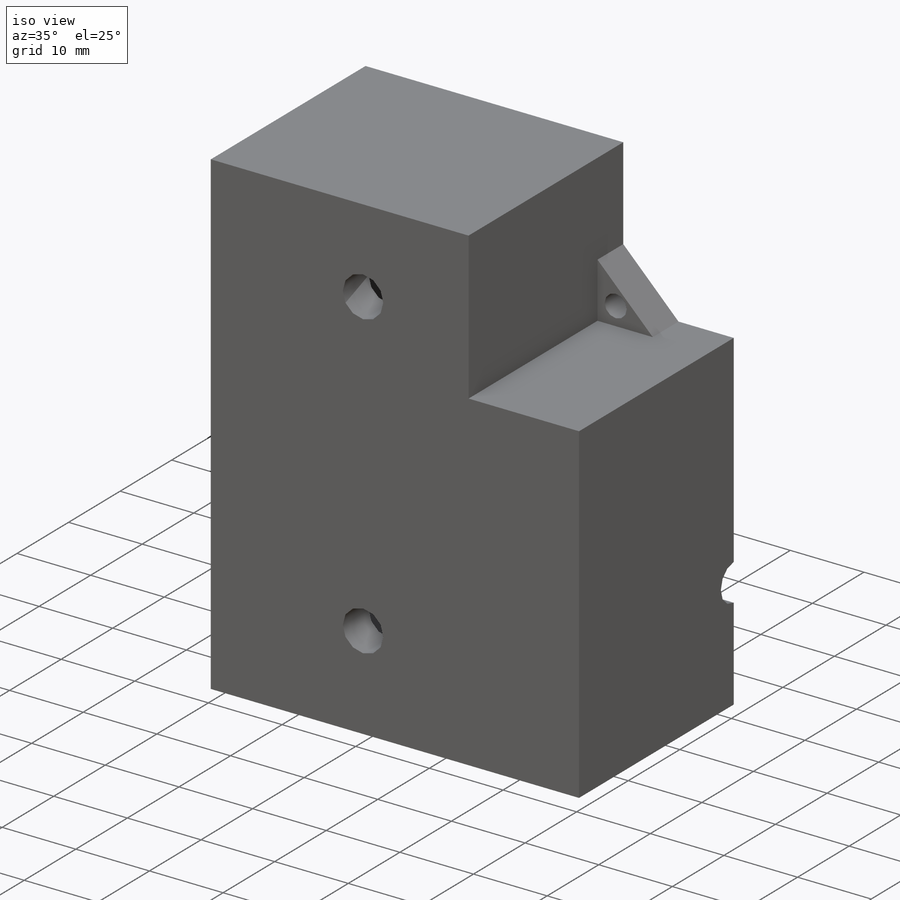
[diagram: iso view]
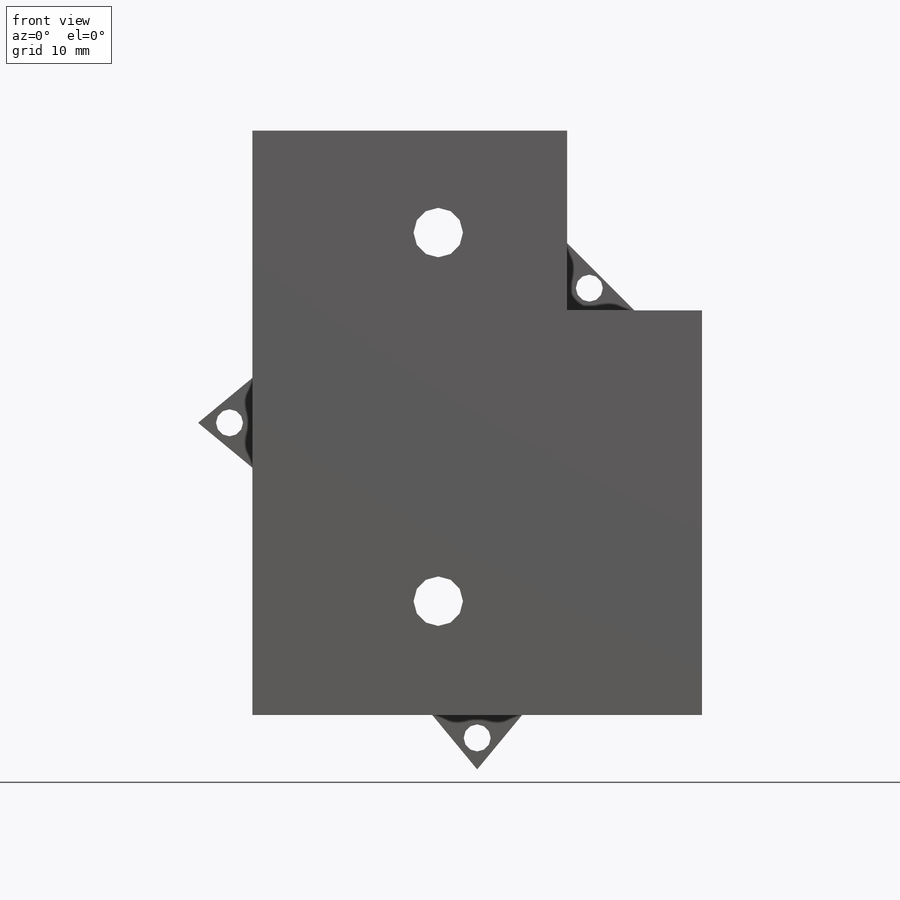
[diagram: front view]
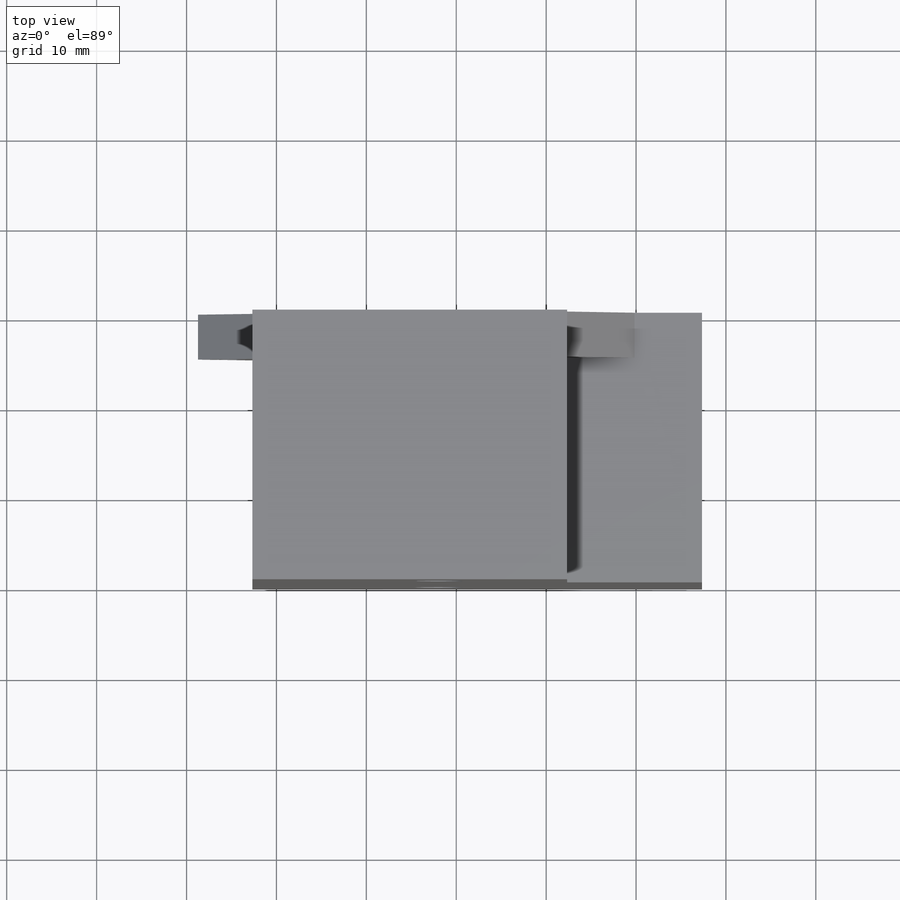
[diagram: top view]
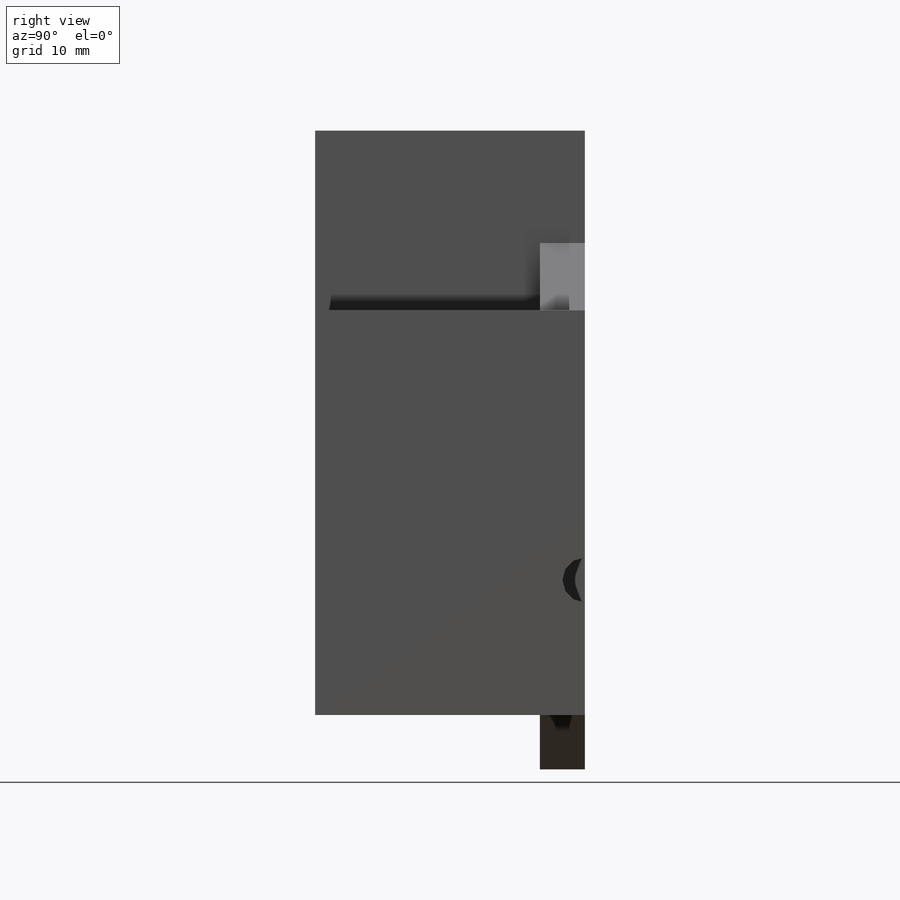
[diagram: right view]
SOLIDWORKS PART (.sldprt)
format: sldprt  version: not decoded by parser v0  size: 257,536 bytes
history: native  units: mm
features: sketch x8, cut_extrude x6, thread x3, extrude x2, material x1 (+12 scaffold rows collapsed)
feature tree (32):
  scaffold x12  (default folders/planes/origin — collapsed)
  material  "Material <not specified>"
  sketch  "Sketch1"  dims[D1=~5.675546mm]
  extrude  "Base-Extrude"  Depth=5mm
  sketch  "Sketch2"  dims[D1=5.0mm]
  sketch  "Sketch12"  dims[D1=~3.296803mm]
  cut_extrude  "Cut-Extrude11"  [1 undecoded]
  thread  "Cosmetic Thread7"  Diameter=5mm  [1 undecoded]
  thread  "Cosmetic Thread8"  Diameter=5mm  [1 undecoded]
  thread  "Cosmetic Thread9"  Diameter=5mm  [1 undecoded]
  sketch  "Sketch13"
  extrude  "Boss-Extrude1"  Depth=25mm
  cut_extrude  "Cut-Extrude14"  Depth=20mm
  sketch  "Sketch14"
  cut_extrude  "Cut-Extrude15"  Depth=20mm
  sketch  "Sketch15"  dims[D1=~15.421939mm]
  cut_extrude  "Cut-Extrude16"  Depth=20mm
  sketch  "Sketch16"  dims[D1=2.75mm]
  cut_extrude  "Extrude1"  Depth=10mm
  sketch  "Sketch17"  dims[D1=~2.491238mm]
  cut_extrude  "Extrude2"  Depth=6mm
decode coverage: 16 of 19 modeling features carry decoded parameters
note: ~ marks probable driven/reference dimensions
note: 4 parameter values undecoded
note: suppression state not decoded; provenance and decode notes live in map.json
